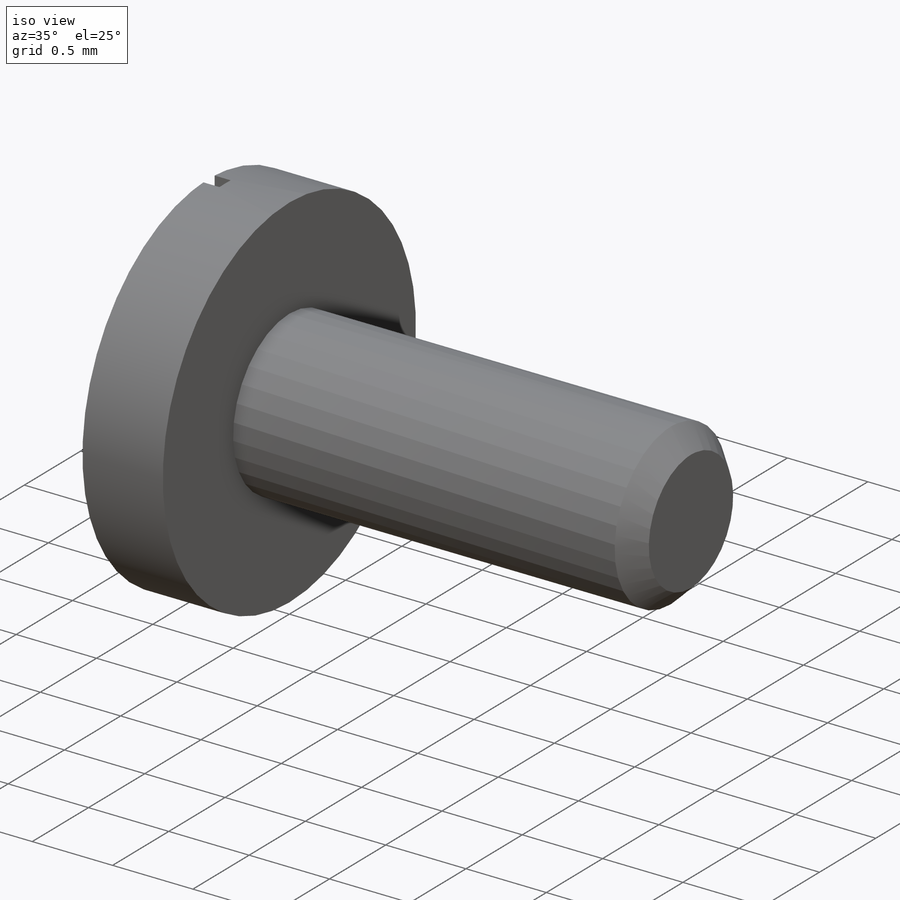
[diagram: iso view]
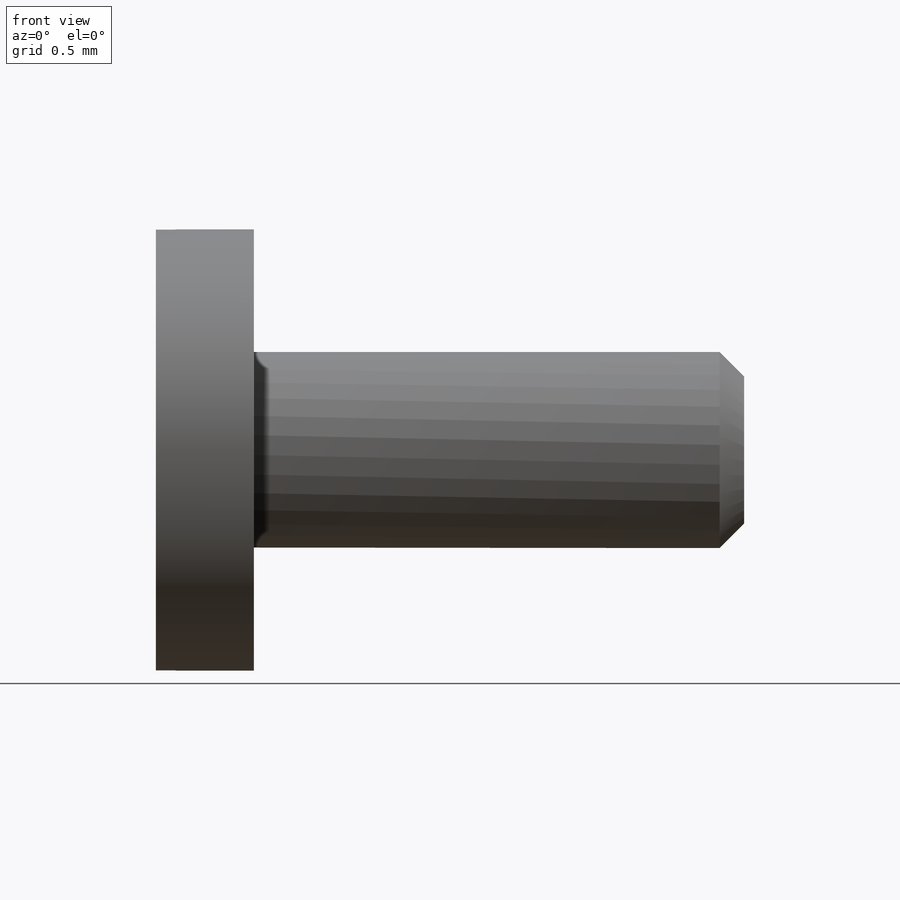
[diagram: front view]
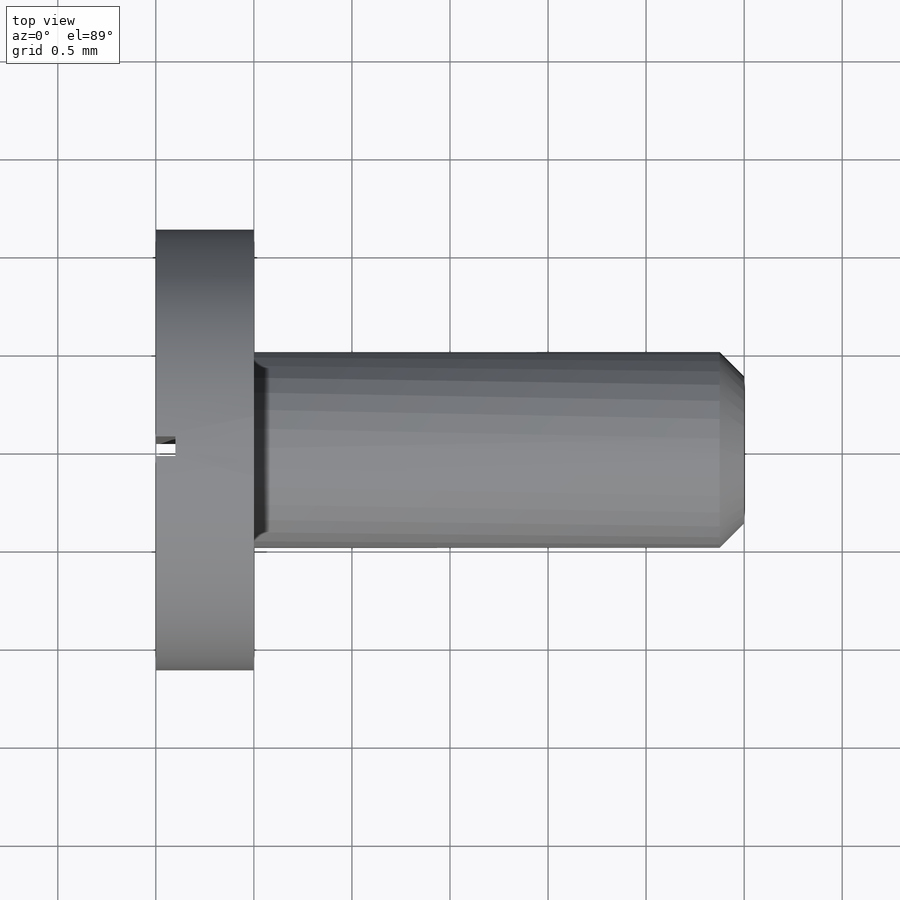
[diagram: top view]
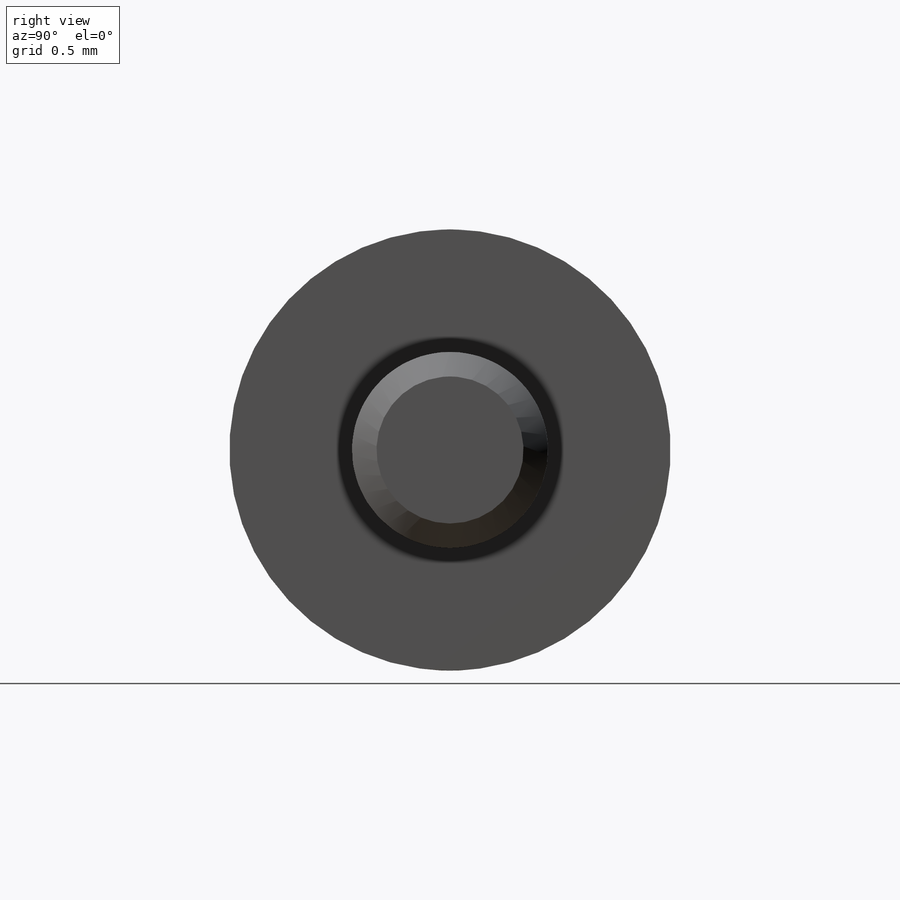
[diagram: right view]
SOLIDWORKS PART (.sldprt)
format: sldprt  version: not decoded by parser v0  size: 255,488 bytes
history: native  units: mm
features: sketch x2, material x1, revolve x1, thread x1, chamfer x1, cut_extrude x1 (+11 scaffold rows collapsed)
feature tree (18):
  scaffold x11  (default folders/planes/origin — collapsed)
  material  "Material <sin especificar>"
  sketch  "Croquis1"  dims[c1.D1=3.75mm c1.D2=1.125mm c1.D3=0.1mm c1.D4=0.5mm c1.D5=0.5mm c1.D6=0.5mm c2.D1=2.75mm c2.D5=0.25mm c2.D7=3.0mm c2.D8=0.4mm c3.D8=90.0deg c3.D1=3.0mm]
  revolve  "Revolución1"  [1 undecoded]
  thread  "Rosca cosmética1"  Diameter=0.75mm  [1 undecoded]
  chamfer  "Chaflán1"  Distance=0.125mm Angle=45deg
  sketch  "Croquis6"  dims[D1=0.1mm]
  cut_extrude  "Cortar-Extruir2"  Depth=0.1mm
decode coverage: 5 of 6 modeling features carry decoded parameters
note: 2 parameter values undecoded
note: suppression state not decoded; provenance and decode notes live in map.json
